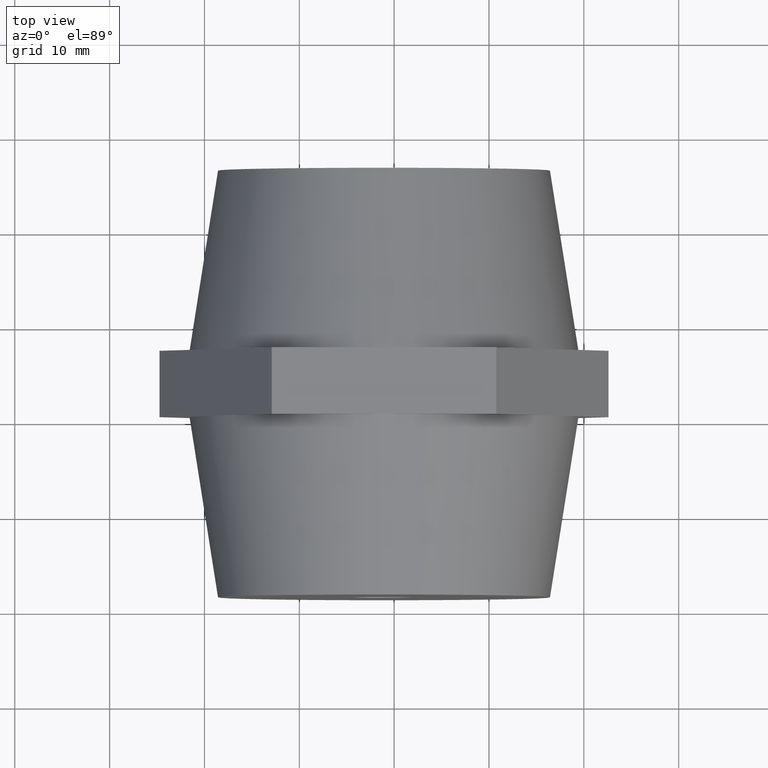
[diagram: clean part render]
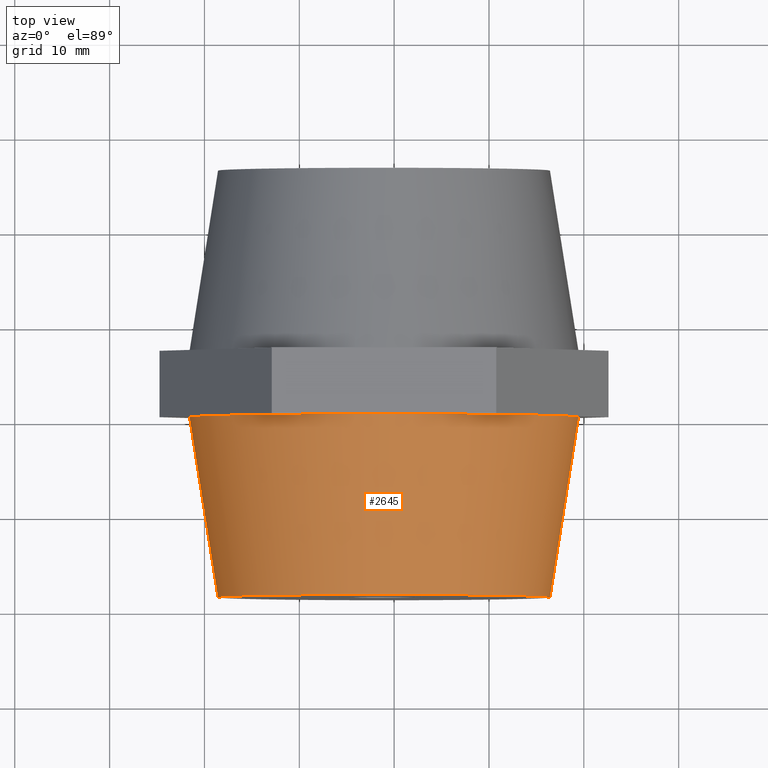
[diagram: same view with one face highlighted and labeled with its STEP entity id]
A machine part, top view. The second image highlights one B-rep face of the part: STEP entity #2645.
In plain terms, the highlighted conical surface has half-angle 8.973 deg.
Its self-contained STEP definition (entity closure, byte-faithful):
#3 = DIRECTION ( 'NONE',  ( 0.0000000000000000000, 0.0000000000000000000, 1.000000000000000000 ) ) ;
#131 = AXIS2_PLACEMENT_3D ( 'NONE', #3588, #2073, #1746 ) ;
#186 = CARTESIAN_POINT ( 'NONE',  ( 3.184081677783119800E-015, -3.500000000000000000, 0.0000000000000000000 ) ) ;
#205 = CIRCLE ( 'NONE', #2657, 20.50000000000000000 ) ;
#326 = AXIS2_PLACEMENT_3D ( 'NONE', #1211, #1800, #3 ) ;
#390 = VECTOR ( 'NONE', #2523, 1000.000000000000200 ) ;
#434 = CARTESIAN_POINT ( 'NONE',  ( 5.510910596163089600E-015, -22.50000000000000000, 0.0000000000000000000 ) ) ;
#457 = CARTESIAN_POINT ( 'NONE',  ( 3.184081677783119800E-015, -3.500000000000000000, 3.963988323555905400E-016 ) ) ;
#505 = DIRECTION ( 'NONE',  ( -1.000000000000000000, -1.269309860470834500E-016, 0.0000000000000000000 ) ) ;
#669 = VERTEX_POINT ( 'NONE', #3436 ) ;
#716 = ORIENTED_EDGE ( 'NONE', *, *, #1801, .F. ) ;
#718 = VERTEX_POINT ( 'NONE', #3713 ) ;
#721 = CARTESIAN_POINT ( 'NONE',  ( -20.49999999999999600, -3.500000000000000000, 0.0000000000000000000 ) ) ;
#769 = LINE ( 'NONE', #1664, #3078 ) ;
#823 = CONICAL_SURFACE ( 'NONE', #131, 20.50000000000000000, 0.1566018769820149100 ) ;
#836 = VERTEX_POINT ( 'NONE', #2577 ) ;
#917 = ORIENTED_EDGE ( 'NONE', *, *, #2673, .F. ) ;
#974 = VERTEX_POINT ( 'NONE', #1484 ) ;
#985 = CIRCLE ( 'NONE', #1825, 20.50000000000000000 ) ;
#1175 = LINE ( 'NONE', #3818, #390 ) ;
#1210 = CIRCLE ( 'NONE', #3360, 17.50000000000000000 ) ;
#1211 = CARTESIAN_POINT ( 'NONE',  ( 3.184081677783119800E-015, -3.500000000000000000, 3.963988323555905400E-016 ) ) ;
#1217 = AXIS2_PLACEMENT_3D ( 'NONE', #1459, #3866, #3535 ) ;
#1244 = EDGE_CURVE ( 'NONE', #1565, #836, #985, .T. ) ;
#1459 = CARTESIAN_POINT ( 'NONE',  ( 3.184081677783119800E-015, -3.500000000000000000, 3.963988323555905400E-016 ) ) ;
#1484 = CARTESIAN_POINT ( 'NONE',  ( 20.50000000000000400, -3.500000000000000000, 2.510525938252074500E-015 ) ) ;
#1538 = ORIENTED_EDGE ( 'NONE', *, *, #3086, .T. ) ;
#1565 = VERTEX_POINT ( 'NONE', #1662 ) ;
#1662 = CARTESIAN_POINT ( 'NONE',  ( -17.75352077758099900, -3.500000000000000000, 10.25000000000000000 ) ) ;
#1664 = CARTESIAN_POINT ( 'NONE',  ( 20.50000000000000400, -3.499999999999997300, 2.510525938252074500E-015 ) ) ;
#1693 = DIRECTION ( 'NONE',  ( -1.224646799147353900E-016, 1.000000000000000000, 0.0000000000000000000 ) ) ;
#1746 = DIRECTION ( 'NONE',  ( -1.000000000000000000, -1.269309860470834500E-016, 0.0000000000000000000 ) ) ;
#1800 = DIRECTION ( 'NONE',  ( 0.0000000000000000000, 1.000000000000000000, 0.0000000000000000000 ) ) ;
#1801 = EDGE_CURVE ( 'NONE', #718, #3426, #1175, .T. ) ;
#1822 = EDGE_CURVE ( 'NONE', #3426, #1565, #3503, .T. ) ;
#1825 = AXIS2_PLACEMENT_3D ( 'NONE', #186, #1693, #505 ) ;
#2073 = DIRECTION ( 'NONE',  ( -1.224646799147353900E-016, 1.000000000000000000, 0.0000000000000000000 ) ) ;
#2277 = DIRECTION ( 'NONE',  ( -1.000000000000000000, -1.982541115402065400E-016, 0.0000000000000000000 ) ) ;
#2342 = ORIENTED_EDGE ( 'NONE', *, *, #2833, .T. ) ;
#2426 = ORIENTED_EDGE ( 'NONE', *, *, #1244, .F. ) ;
#2506 = EDGE_LOOP ( 'NONE', ( #1538, #2342, #3303, #917, #2426, #3632, #716 ) ) ;
#2523 = DIRECTION ( 'NONE',  ( -0.1559625734730106000, 0.9877629653290690400, 0.0000000000000000000 ) ) ;
#2577 = CARTESIAN_POINT ( 'NONE',  ( 1.794524803088000300E-016, -3.500000000000000000, 20.50000000000000000 ) ) ;
#2609 = DIRECTION ( 'NONE',  ( 0.0000000000000000000, 1.000000000000000000, 0.0000000000000000000 ) ) ;
#2645 = ADVANCED_FACE ( 'NONE', ( #3183 ), #823, .T. ) ;
#2657 = AXIS2_PLACEMENT_3D ( 'NONE', #457, #2609, #3483 ) ;
#2673 = EDGE_CURVE ( 'NONE', #836, #3773, #2741, .T. ) ;
#2741 = CIRCLE ( 'NONE', #326, 20.50000000000000000 ) ;
#2833 = EDGE_CURVE ( 'NONE', #669, #974, #769, .T. ) ;
#2855 = DIRECTION ( 'NONE',  ( -1.224646799147353900E-016, 1.000000000000000000, 0.0000000000000000000 ) ) ;
#3078 = VECTOR ( 'NONE', #3203, 1000.000000000000100 ) ;
#3086 = EDGE_CURVE ( 'NONE', #718, #669, #1210, .T. ) ;
#3183 = FACE_OUTER_BOUND ( 'NONE', #2506, .T. ) ;
#3203 = DIRECTION ( 'NONE',  ( 0.1559625734730103700, 0.9877629653290691500, 1.909990663905061800E-017 ) ) ;
#3303 = ORIENTED_EDGE ( 'NONE', *, *, #3538, .F. ) ;
#3360 = AXIS2_PLACEMENT_3D ( 'NONE', #434, #2855, #2277 ) ;
#3426 = VERTEX_POINT ( 'NONE', #721 ) ;
#3436 = CARTESIAN_POINT ( 'NONE',  ( 17.50000000000000700, -22.49999999999999600, 2.326828918379971400E-015 ) ) ;
#3483 = DIRECTION ( 'NONE',  ( 0.0000000000000000000, 0.0000000000000000000, 1.000000000000000000 ) ) ;
#3503 = CIRCLE ( 'NONE', #1217, 20.50000000000000000 ) ;
#3535 = DIRECTION ( 'NONE',  ( 0.0000000000000000000, 0.0000000000000000000, 1.000000000000000000 ) ) ;
#3538 = EDGE_CURVE ( 'NONE', #3773, #974, #205, .T. ) ;
#3588 = CARTESIAN_POINT ( 'NONE',  ( 3.184081677783119800E-015, -3.500000000000000000, 0.0000000000000000000 ) ) ;
#3595 = CARTESIAN_POINT ( 'NONE',  ( 17.75352077758099900, -3.500000000000000000, 10.25000000000000000 ) ) ;
#3632 = ORIENTED_EDGE ( 'NONE', *, *, #1822, .F. ) ;
#3713 = CARTESIAN_POINT ( 'NONE',  ( -17.49999999999999600, -22.50000000000000400, 0.0000000000000000000 ) ) ;
#3773 = VERTEX_POINT ( 'NONE', #3595 ) ;
#3818 = CARTESIAN_POINT ( 'NONE',  ( -20.49999999999999600, -3.500000000000002700, 0.0000000000000000000 ) ) ;
#3866 = DIRECTION ( 'NONE',  ( 0.0000000000000000000, 1.000000000000000000, 0.0000000000000000000 ) ) ;